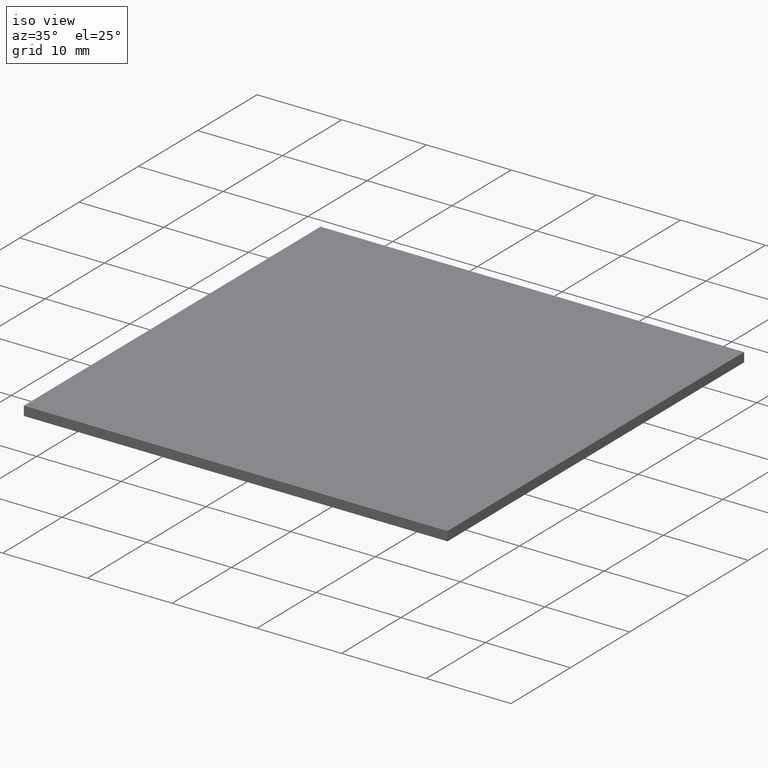
[diagram: clean part render]
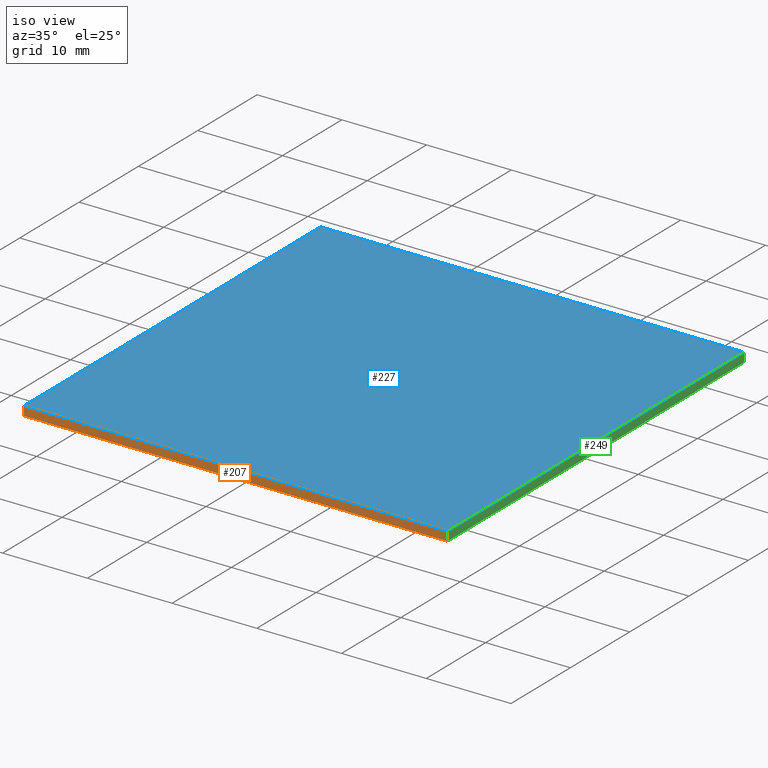
[diagram: same view with three faces highlighted in distinct colors, each labeled with its STEP entity id]
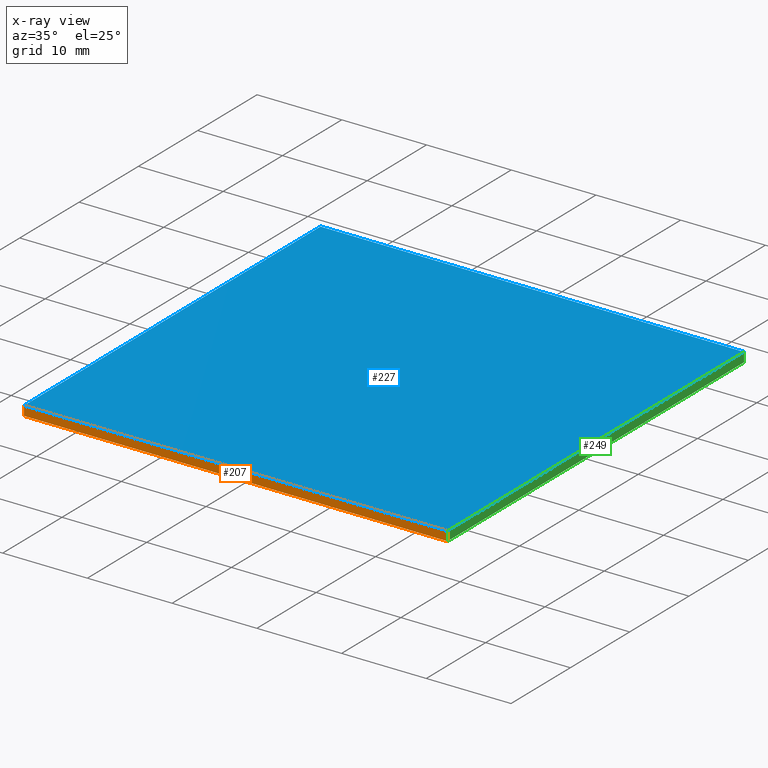
[diagram: x-ray of the same camera — body ghosted, the three highlighted faces saturated]
A machine part, iso view with three faces highlighted in distinct colors.
The next image is the same camera in x-ray (body ghosted, the three faces saturated) — at least one of them is partly hidden behind the body in this view.
Their STEP definitions:

[orange] entity #207 — the highlighted planar face has unit normal (0, 1, 0).
#11 = AXIS2_PLACEMENT_3D ( 'NONE', #174, #141, #15 ) ;
#14 = VERTEX_POINT ( 'NONE', #226 ) ;
#15 = DIRECTION ( 'NONE',  ( 0.0000000000000000000, -0.0000000000000000000, 1.000000000000000000 ) ) ;
#40 = CARTESIAN_POINT ( 'NONE',  ( -25.00000000000000000, -25.00000000000000000, 0.0000000000000000000 ) ) ;
#60 = LINE ( 'NONE', #204, #75 ) ;
#72 = EDGE_CURVE ( 'NONE', #101, #139, #60, .T. ) ;
#75 = VECTOR ( 'NONE', #160, 1000.000000000000000 ) ;
#90 = EDGE_CURVE ( 'NONE', #101, #116, #217, .T. ) ;
#91 = VECTOR ( 'NONE', #242, 1000.000000000000000 ) ;
#101 = VERTEX_POINT ( 'NONE', #184 ) ;
#116 = VERTEX_POINT ( 'NONE', #309 ) ;
#139 = VERTEX_POINT ( 'NONE', #40 ) ;
#141 = DIRECTION ( 'NONE',  ( 0.0000000000000000000, 1.000000000000000000, 0.0000000000000000000 ) ) ;
#144 = EDGE_LOOP ( 'NONE', ( #161, #205, #257, #211 ) ) ;
#150 = CARTESIAN_POINT ( 'NONE',  ( -25.00000000000000000, -25.00000000000000000, 0.0000000000000000000 ) ) ;
#153 = CARTESIAN_POINT ( 'NONE',  ( 25.00000000000000000, -25.00000000000000000, 1.100000000000000100 ) ) ;
#158 = FACE_OUTER_BOUND ( 'NONE', #144, .T. ) ;
#160 = DIRECTION ( 'NONE',  ( -0.0000000000000000000, -0.0000000000000000000, -1.000000000000000000 ) ) ;
#161 = ORIENTED_EDGE ( 'NONE', *, *, #302, .T. ) ;
#174 = CARTESIAN_POINT ( 'NONE',  ( -25.00000000000000000, -25.00000000000000000, 1.100000000000000100 ) ) ;
#184 = CARTESIAN_POINT ( 'NONE',  ( -25.00000000000000000, -25.00000000000000000, 1.100000000000000100 ) ) ;
#201 = DIRECTION ( 'NONE',  ( 1.000000000000000000, 0.0000000000000000000, 0.0000000000000000000 ) ) ;
#204 = CARTESIAN_POINT ( 'NONE',  ( -25.00000000000000000, -25.00000000000000000, 1.100000000000000100 ) ) ;
#205 = ORIENTED_EDGE ( 'NONE', *, *, #235, .F. ) ;
#207 = ADVANCED_FACE ( 'NONE', ( #158 ), #289, .F. ) ;
#211 = ORIENTED_EDGE ( 'NONE', *, *, #72, .T. ) ;
#217 = LINE ( 'NONE', #267, #91 ) ;
#226 = CARTESIAN_POINT ( 'NONE',  ( 25.00000000000000000, -25.00000000000000000, 0.0000000000000000000 ) ) ;
#232 = VECTOR ( 'NONE', #269, 1000.000000000000000 ) ;
#235 = EDGE_CURVE ( 'NONE', #116, #14, #292, .T. ) ;
#242 = DIRECTION ( 'NONE',  ( 1.000000000000000000, 0.0000000000000000000, 0.0000000000000000000 ) ) ;
#257 = ORIENTED_EDGE ( 'NONE', *, *, #90, .F. ) ;
#267 = CARTESIAN_POINT ( 'NONE',  ( -25.00000000000000000, -25.00000000000000000, 1.100000000000000100 ) ) ;
#269 = DIRECTION ( 'NONE',  ( -0.0000000000000000000, -0.0000000000000000000, -1.000000000000000000 ) ) ;
#289 = PLANE ( 'NONE',  #11 ) ;
#291 = LINE ( 'NONE', #150, #305 ) ;
#292 = LINE ( 'NONE', #153, #232 ) ;
#302 = EDGE_CURVE ( 'NONE', #139, #14, #291, .T. ) ;
#305 = VECTOR ( 'NONE', #201, 1000.000000000000000 ) ;
#309 = CARTESIAN_POINT ( 'NONE',  ( 25.00000000000000000, -25.00000000000000000, 1.100000000000000100 ) ) ;

[blue] entity #227 — the highlighted planar face has unit normal (-0, 0, 1).
#7 = VERTEX_POINT ( 'NONE', #163 ) ;
#20 = LINE ( 'NONE', #22, #280 ) ;
#22 = CARTESIAN_POINT ( 'NONE',  ( 25.00000000000000000, 25.00000000000000000, 1.100000000000000100 ) ) ;
#45 = DIRECTION ( 'NONE',  ( -0.0000000000000000000, 1.000000000000000000, -0.0000000000000000000 ) ) ;
#47 = CARTESIAN_POINT ( 'NONE',  ( -25.00000000000000000, 25.00000000000000000, 1.100000000000000100 ) ) ;
#57 = EDGE_CURVE ( 'NONE', #275, #101, #303, .T. ) ;
#84 = ORIENTED_EDGE ( 'NONE', *, *, #241, .T. ) ;
#90 = EDGE_CURVE ( 'NONE', #101, #116, #217, .T. ) ;
#91 = VECTOR ( 'NONE', #242, 1000.000000000000000 ) ;
#94 = PLANE ( 'NONE',  #191 ) ;
#100 = CARTESIAN_POINT ( 'NONE',  ( 0.0000000000000000000, 0.0000000000000000000, 1.100000000000000100 ) ) ;
#101 = VERTEX_POINT ( 'NONE', #184 ) ;
#110 = VECTOR ( 'NONE', #202, 1000.000000000000000 ) ;
#116 = VERTEX_POINT ( 'NONE', #309 ) ;
#121 = DIRECTION ( 'NONE',  ( -0.0000000000000000000, 0.0000000000000000000, 1.000000000000000000 ) ) ;
#146 = FACE_OUTER_BOUND ( 'NONE', #307, .T. ) ;
#163 = CARTESIAN_POINT ( 'NONE',  ( 25.00000000000000000, 25.00000000000000000, 1.100000000000000100 ) ) ;
#170 = CARTESIAN_POINT ( 'NONE',  ( -25.00000000000000000, 25.00000000000000000, 1.100000000000000100 ) ) ;
#182 = CARTESIAN_POINT ( 'NONE',  ( -25.00000000000000000, 25.00000000000000000, 1.100000000000000100 ) ) ;
#184 = CARTESIAN_POINT ( 'NONE',  ( -25.00000000000000000, -25.00000000000000000, 1.100000000000000100 ) ) ;
#191 = AXIS2_PLACEMENT_3D ( 'NONE', #100, #121, #294 ) ;
#202 = DIRECTION ( 'NONE',  ( -1.000000000000000000, -0.0000000000000000000, -0.0000000000000000000 ) ) ;
#217 = LINE ( 'NONE', #267, #91 ) ;
#218 = EDGE_CURVE ( 'NONE', #7, #275, #240, .T. ) ;
#225 = ORIENTED_EDGE ( 'NONE', *, *, #218, .T. ) ;
#227 = ADVANCED_FACE ( 'NONE', ( #146 ), #94, .T. ) ;
#240 = LINE ( 'NONE', #170, #110 ) ;
#241 = EDGE_CURVE ( 'NONE', #116, #7, #20, .T. ) ;
#242 = DIRECTION ( 'NONE',  ( 1.000000000000000000, 0.0000000000000000000, 0.0000000000000000000 ) ) ;
#243 = VECTOR ( 'NONE', #250, 1000.000000000000000 ) ;
#246 = ORIENTED_EDGE ( 'NONE', *, *, #57, .T. ) ;
#250 = DIRECTION ( 'NONE',  ( 0.0000000000000000000, -1.000000000000000000, 0.0000000000000000000 ) ) ;
#267 = CARTESIAN_POINT ( 'NONE',  ( -25.00000000000000000, -25.00000000000000000, 1.100000000000000100 ) ) ;
#270 = ORIENTED_EDGE ( 'NONE', *, *, #90, .T. ) ;
#275 = VERTEX_POINT ( 'NONE', #47 ) ;
#280 = VECTOR ( 'NONE', #45, 1000.000000000000000 ) ;
#294 = DIRECTION ( 'NONE',  ( 1.000000000000000000, 0.0000000000000000000, 0.0000000000000000000 ) ) ;
#303 = LINE ( 'NONE', #182, #243 ) ;
#307 = EDGE_LOOP ( 'NONE', ( #246, #270, #84, #225 ) ) ;
#309 = CARTESIAN_POINT ( 'NONE',  ( 25.00000000000000000, -25.00000000000000000, 1.100000000000000100 ) ) ;

[green] entity #249 — the highlighted planar face has unit normal (-1, 0, 0).
#7 = VERTEX_POINT ( 'NONE', #163 ) ;
#12 = ORIENTED_EDGE ( 'NONE', *, *, #241, .F. ) ;
#14 = VERTEX_POINT ( 'NONE', #226 ) ;
#20 = LINE ( 'NONE', #22, #280 ) ;
#21 = DIRECTION ( 'NONE',  ( -0.0000000000000000000, 1.000000000000000000, -0.0000000000000000000 ) ) ;
#22 = CARTESIAN_POINT ( 'NONE',  ( 25.00000000000000000, 25.00000000000000000, 1.100000000000000100 ) ) ;
#28 = VECTOR ( 'NONE', #176, 1000.000000000000000 ) ;
#45 = DIRECTION ( 'NONE',  ( -0.0000000000000000000, 1.000000000000000000, -0.0000000000000000000 ) ) ;
#74 = ORIENTED_EDGE ( 'NONE', *, *, #276, .T. ) ;
#85 = EDGE_LOOP ( 'NONE', ( #74, #169, #12, #154 ) ) ;
#89 = LINE ( 'NONE', #244, #28 ) ;
#98 = LINE ( 'NONE', #177, #181 ) ;
#116 = VERTEX_POINT ( 'NONE', #309 ) ;
#152 = CARTESIAN_POINT ( 'NONE',  ( 25.00000000000000000, 25.00000000000000000, 1.100000000000000100 ) ) ;
#153 = CARTESIAN_POINT ( 'NONE',  ( 25.00000000000000000, -25.00000000000000000, 1.100000000000000100 ) ) ;
#154 = ORIENTED_EDGE ( 'NONE', *, *, #235, .T. ) ;
#162 = AXIS2_PLACEMENT_3D ( 'NONE', #152, #224, #313 ) ;
#163 = CARTESIAN_POINT ( 'NONE',  ( 25.00000000000000000, 25.00000000000000000, 1.100000000000000100 ) ) ;
#169 = ORIENTED_EDGE ( 'NONE', *, *, #255, .F. ) ;
#176 = DIRECTION ( 'NONE',  ( -0.0000000000000000000, -0.0000000000000000000, -1.000000000000000000 ) ) ;
#177 = CARTESIAN_POINT ( 'NONE',  ( 25.00000000000000000, 25.00000000000000000, 0.0000000000000000000 ) ) ;
#181 = VECTOR ( 'NONE', #21, 1000.000000000000000 ) ;
#224 = DIRECTION ( 'NONE',  ( -1.000000000000000000, 0.0000000000000000000, 0.0000000000000000000 ) ) ;
#226 = CARTESIAN_POINT ( 'NONE',  ( 25.00000000000000000, -25.00000000000000000, 0.0000000000000000000 ) ) ;
#232 = VECTOR ( 'NONE', #269, 1000.000000000000000 ) ;
#235 = EDGE_CURVE ( 'NONE', #116, #14, #292, .T. ) ;
#241 = EDGE_CURVE ( 'NONE', #116, #7, #20, .T. ) ;
#244 = CARTESIAN_POINT ( 'NONE',  ( 25.00000000000000000, 25.00000000000000000, 1.100000000000000100 ) ) ;
#249 = ADVANCED_FACE ( 'NONE', ( #297 ), #311, .F. ) ;
#255 = EDGE_CURVE ( 'NONE', #7, #263, #89, .T. ) ;
#263 = VERTEX_POINT ( 'NONE', #273 ) ;
#269 = DIRECTION ( 'NONE',  ( -0.0000000000000000000, -0.0000000000000000000, -1.000000000000000000 ) ) ;
#273 = CARTESIAN_POINT ( 'NONE',  ( 25.00000000000000000, 25.00000000000000000, 0.0000000000000000000 ) ) ;
#276 = EDGE_CURVE ( 'NONE', #14, #263, #98, .T. ) ;
#280 = VECTOR ( 'NONE', #45, 1000.000000000000000 ) ;
#292 = LINE ( 'NONE', #153, #232 ) ;
#297 = FACE_OUTER_BOUND ( 'NONE', #85, .T. ) ;
#309 = CARTESIAN_POINT ( 'NONE',  ( 25.00000000000000000, -25.00000000000000000, 1.100000000000000100 ) ) ;
#311 = PLANE ( 'NONE',  #162 ) ;
#313 = DIRECTION ( 'NONE',  ( 0.0000000000000000000, 0.0000000000000000000, 1.000000000000000000 ) ) ;